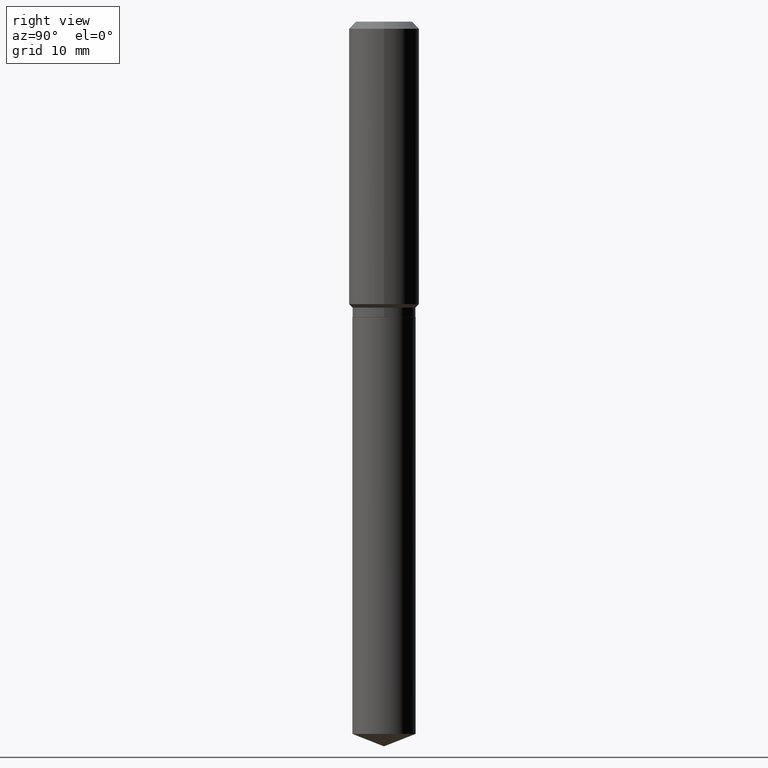
[diagram: clean part render]
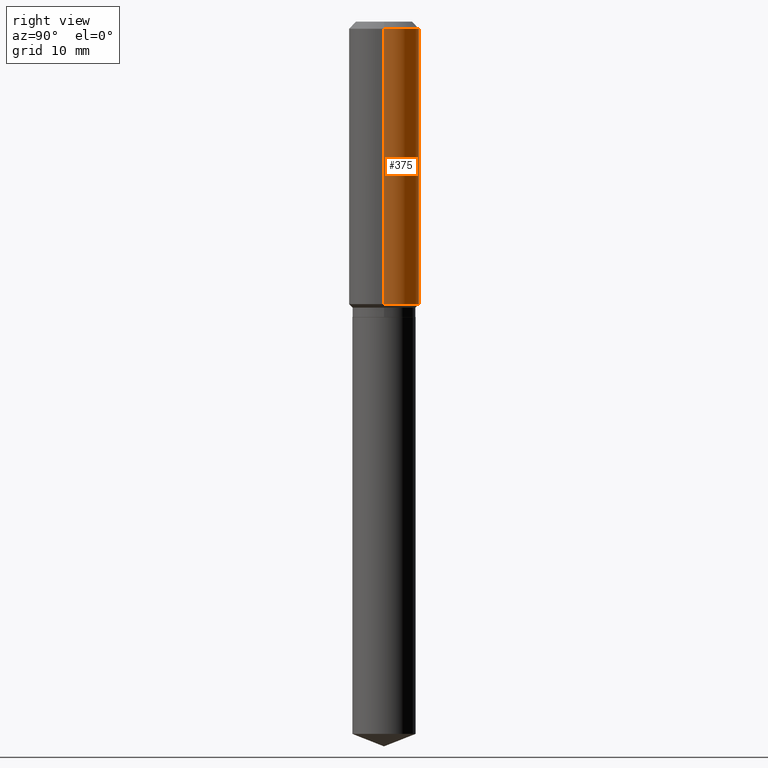
[diagram: same view with one face highlighted and labeled with its STEP entity id]
A machine part, right view. The second image highlights one B-rep face of the part: STEP entity #375.
In plain terms, the highlighted cylindrical surface (edge-blend (fillet) strip) has radius 5 mm, axis along (-0, 0, 1).
Its self-contained STEP definition (entity closure, byte-faithful):
#2 = DIRECTION ( 'NONE',  ( -2.445468806185136597E-29, 3.491481338843145583E-15, 1.000000000000000000 ) ) ;
#3 = EDGE_CURVE ( 'NONE', #77, #448, #380, .T. ) ;
#4 = AXIS2_PLACEMENT_3D ( 'NONE', #382, #31, #233 ) ;
#7 = CARTESIAN_POINT ( 'NONE',  ( 3.864329807533752585E-29, -5.517238811639938393E-15, -1.580200000000000049 ) ) ;
#20 = EDGE_CURVE ( 'NONE', #321, #448, #410, .T. ) ;
#31 = DIRECTION ( 'NONE',  ( -2.445468806185136597E-29, 3.491481338843145583E-15, 1.000000000000000000 ) ) ;
#38 = LINE ( 'NONE', #384, #181 ) ;
#44 = VERTEX_POINT ( 'NONE', #286 ) ;
#60 = DIRECTION ( 'NONE',  ( 1.000000000000000000, -6.982962677686265922E-15, 0.000000000000000000 ) ) ;
#75 = VECTOR ( 'NONE', #486, 39.37007874015748143 ) ;
#77 = VERTEX_POINT ( 'NONE', #393 ) ;
#78 = CARTESIAN_POINT ( 'NONE',  ( -0.1968500000000002192, -4.118535436296179028E-15, -1.580200000000000049 ) ) ;
#87 = DIRECTION ( 'NONE',  ( 1.000000000000000000, -6.982962677686265922E-15, 0.000000000000000000 ) ) ;
#95 = ORIENTED_EDGE ( 'NONE', *, *, #113, .T. ) ;
#104 = AXIS2_PLACEMENT_3D ( 'NONE', #7, #2, #87 ) ;
#113 = EDGE_CURVE ( 'NONE', #44, #321, #221, .T. ) ;
#157 = EDGE_LOOP ( 'NONE', ( #95, #166, #377, #413 ) ) ;
#160 = AXIS2_PLACEMENT_3D ( 'NONE', #403, #252, #60 ) ;
#166 = ORIENTED_EDGE ( 'NONE', *, *, #20, .T. ) ;
#181 = VECTOR ( 'NONE', #226, 39.37007874015748143 ) ;
#221 = CIRCLE ( 'NONE', #104, 0.1968500000000002192 ) ;
#226 = DIRECTION ( 'NONE',  ( -2.445468806185136877E-29, 3.491481338843145188E-15, 1.000000000000000000 ) ) ;
#228 = CYLINDRICAL_SURFACE ( 'NONE', #4, 0.1968500000000001082 ) ;
#232 = CARTESIAN_POINT ( 'NONE',  ( -0.1968500000000001082, 1.398703375343757985E-15, -9.682923725166787881E-30 ) ) ;
#233 = DIRECTION ( 'NONE',  ( 1.000000000000000000, -6.982962677686266711E-15, 4.876176775795935793E-29 ) ) ;
#252 = DIRECTION ( 'NONE',  ( -2.445468806185136597E-29, 3.491481338843145583E-15, 1.000000000000000000 ) ) ;
#286 = CARTESIAN_POINT ( 'NONE',  ( 0.1968500000000002192, -6.891835014742481579E-15, -1.580200000000000049 ) ) ;
#321 = VERTEX_POINT ( 'NONE', #78 ) ;
#326 = EDGE_CURVE ( 'NONE', #44, #77, #38, .T. ) ;
#348 = FACE_OUTER_BOUND ( 'NONE', #157, .T. ) ;
#375 = ADVANCED_FACE ( 'NONE', ( #348 ), #228, .T. ) ;
#377 = ORIENTED_EDGE ( 'NONE', *, *, #3, .F. ) ;
#380 = CIRCLE ( 'NONE', #160, 0.1968500000000000250 ) ;
#382 = CARTESIAN_POINT ( 'NONE',  ( 0.000000000000000000, 0.000000000000000000, 0.000000000000000000 ) ) ;
#384 = CARTESIAN_POINT ( 'NONE',  ( 0.1968500000000001082, -1.374596203102542397E-15, 9.598753983154305062E-30 ) ) ;
#393 = CARTESIAN_POINT ( 'NONE',  ( 0.1968500000000000250, -1.512055823412797189E-15, -0.03937000000000029365 ) ) ;
#403 = CARTESIAN_POINT ( 'NONE',  ( 9.627810689950954155E-31, -1.374596203102556547E-16, -0.03937000000000029365 ) ) ;
#410 = LINE ( 'NONE', #232, #75 ) ;
#413 = ORIENTED_EDGE ( 'NONE', *, *, #326, .F. ) ;
#448 = VERTEX_POINT ( 'NONE', #474 ) ;
#474 = CARTESIAN_POINT ( 'NONE',  ( -0.1968500000000000250, -1.428645840631338608E-15, -0.03937000000000029365 ) ) ;
#486 = DIRECTION ( 'NONE',  ( -2.445468806185136877E-29, 3.491481338843145188E-15, 1.000000000000000000 ) ) ;